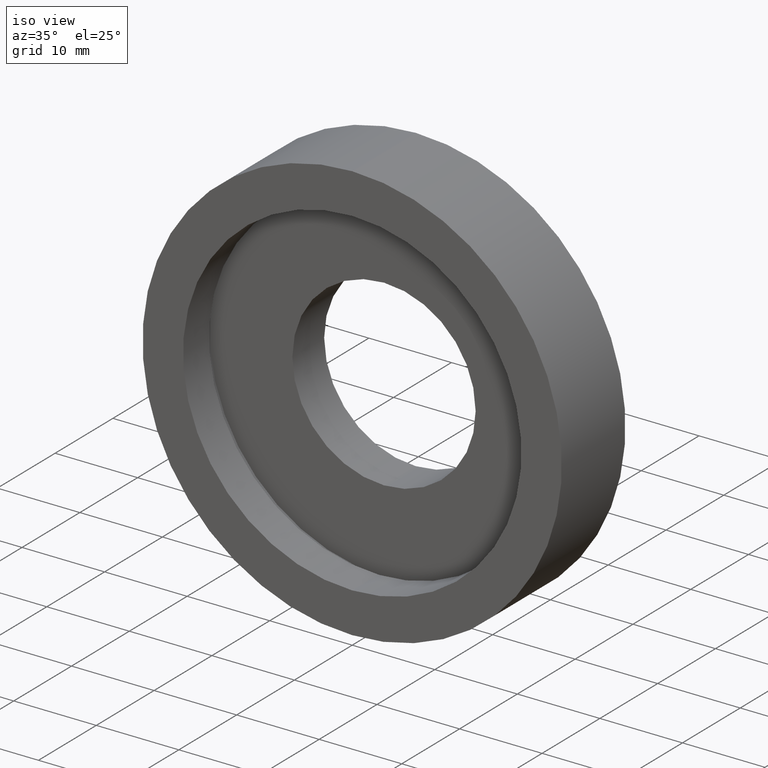
[diagram: clean part render]
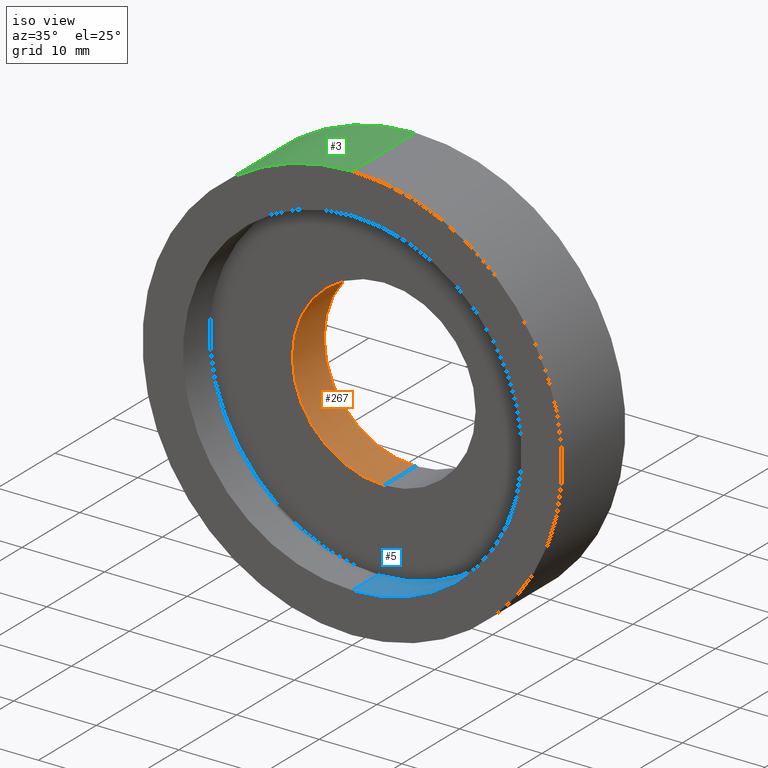
[diagram: same view with three faces highlighted in distinct colors, each labeled with its STEP entity id]
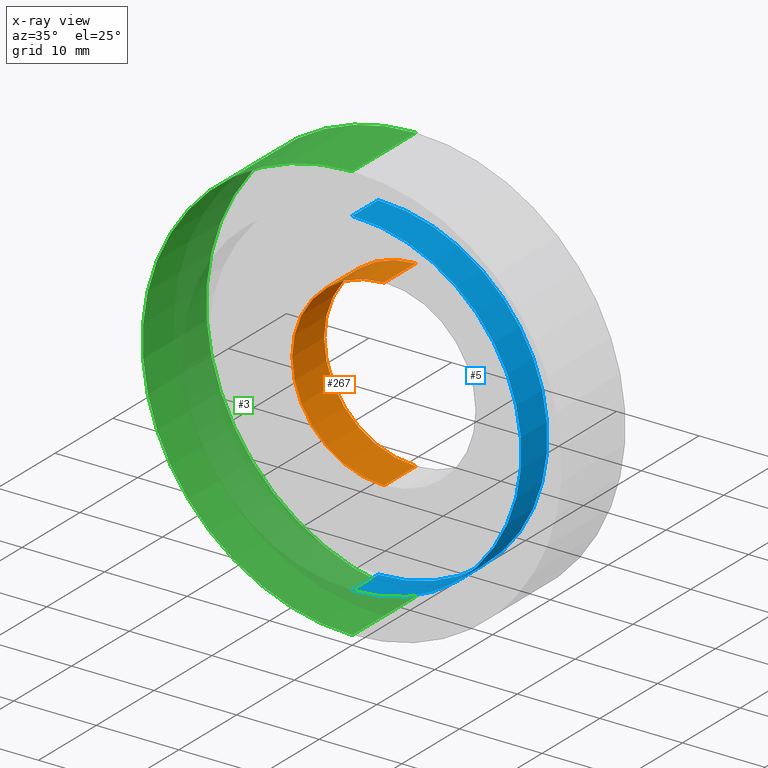
[diagram: x-ray of the same camera — body ghosted, the three highlighted faces saturated]
A machine part, iso view with three faces highlighted in distinct colors.
The next image is the same camera in x-ray (body ghosted, the three faces saturated) — at least one of them is partly hidden behind the body in this view.
Their STEP definitions:

[orange] entity #267 — the highlighted cylindrical surface (partial cylindrical patch) has radius 11.1 mm, axis along (-0, 1, -0).
#8 = CYLINDRICAL_SURFACE ( 'NONE', #61, 11.10000000000000500 ) ;
#9 = LINE ( 'NONE', #397, #364 ) ;
#18 = DIRECTION ( 'NONE',  ( 0.0000000000000000000, 0.0000000000000000000, 1.000000000000000000 ) ) ;
#19 = CIRCLE ( 'NONE', #52, 11.10000000000000700 ) ;
#21 = VERTEX_POINT ( 'NONE', #384 ) ;
#46 = ORIENTED_EDGE ( 'NONE', *, *, #66, .F. ) ;
#50 = CARTESIAN_POINT ( 'NONE',  ( 1.359357947053563100E-015, 10.99999999999999600, -11.10000000000000700 ) ) ;
#51 = CARTESIAN_POINT ( 'NONE',  ( 0.0000000000000000000, 10.99999999999999600, 0.0000000000000000000 ) ) ;
#52 = AXIS2_PLACEMENT_3D ( 'NONE', #51, #399, #18 ) ;
#58 = ORIENTED_EDGE ( 'NONE', *, *, #431, .F. ) ;
#61 = AXIS2_PLACEMENT_3D ( 'NONE', #317, #154, #351 ) ;
#65 = CARTESIAN_POINT ( 'NONE',  ( 0.0000000000000000000, 5.499999999999998200, 0.0000000000000000000 ) ) ;
#66 = EDGE_CURVE ( 'NONE', #192, #173, #9, .T. ) ;
#72 = EDGE_LOOP ( 'NONE', ( #58, #238, #156, #46 ) ) ;
#86 = VECTOR ( 'NONE', #242, 1000.000000000000000 ) ;
#91 = LINE ( 'NONE', #208, #86 ) ;
#95 = CARTESIAN_POINT ( 'NONE',  ( 0.0000000000000000000, 5.499999999999998200, 11.10000000000000500 ) ) ;
#115 = CARTESIAN_POINT ( 'NONE',  ( 0.0000000000000000000, 10.99999999999999600, 11.10000000000000700 ) ) ;
#154 = DIRECTION ( 'NONE',  ( -0.0000000000000000000, 1.000000000000000000, -0.0000000000000000000 ) ) ;
#156 = ORIENTED_EDGE ( 'NONE', *, *, #285, .T. ) ;
#173 = VERTEX_POINT ( 'NONE', #115 ) ;
#177 = AXIS2_PLACEMENT_3D ( 'NONE', #65, #237, #248 ) ;
#190 = CIRCLE ( 'NONE', #177, 11.10000000000000500 ) ;
#192 = VERTEX_POINT ( 'NONE', #95 ) ;
#208 = CARTESIAN_POINT ( 'NONE',  ( 1.359357947053562700E-015, 60.02082041425541100, -11.10000000000000500 ) ) ;
#232 = DIRECTION ( 'NONE',  ( -0.0000000000000000000, 1.000000000000000000, -0.0000000000000000000 ) ) ;
#237 = DIRECTION ( 'NONE',  ( -0.0000000000000000000, 1.000000000000000000, -0.0000000000000000000 ) ) ;
#238 = ORIENTED_EDGE ( 'NONE', *, *, #346, .T. ) ;
#242 = DIRECTION ( 'NONE',  ( -0.0000000000000000000, 1.000000000000000000, -0.0000000000000000000 ) ) ;
#248 = DIRECTION ( 'NONE',  ( 0.0000000000000000000, 0.0000000000000000000, 1.000000000000000000 ) ) ;
#267 = ADVANCED_FACE ( 'NONE', ( #294 ), #8, .F. ) ;
#285 = EDGE_CURVE ( 'NONE', #307, #173, #19, .T. ) ;
#294 = FACE_OUTER_BOUND ( 'NONE', #72, .T. ) ;
#307 = VERTEX_POINT ( 'NONE', #50 ) ;
#317 = CARTESIAN_POINT ( 'NONE',  ( 0.0000000000000000000, 60.02082041425541100, 0.0000000000000000000 ) ) ;
#346 = EDGE_CURVE ( 'NONE', #21, #307, #91, .T. ) ;
#351 = DIRECTION ( 'NONE',  ( 0.0000000000000000000, 0.0000000000000000000, 1.000000000000000000 ) ) ;
#364 = VECTOR ( 'NONE', #232, 1000.000000000000000 ) ;
#384 = CARTESIAN_POINT ( 'NONE',  ( 1.359357947053562700E-015, 5.499999999999998200, -11.10000000000000500 ) ) ;
#397 = CARTESIAN_POINT ( 'NONE',  ( 0.0000000000000000000, 60.02082041425541100, 11.10000000000000500 ) ) ;
#399 = DIRECTION ( 'NONE',  ( -0.0000000000000000000, 1.000000000000000000, -0.0000000000000000000 ) ) ;
#431 = EDGE_CURVE ( 'NONE', #21, #192, #190, .T. ) ;

[blue] entity #5 — the highlighted cylindrical surface (partial cylindrical patch) has radius 20.5 mm, axis along (-0, 1, -0).
#1 = DIRECTION ( 'NONE',  ( 0.0000000000000000000, 0.0000000000000000000, 1.000000000000000000 ) ) ;
#5 = ADVANCED_FACE ( 'NONE', ( #68 ), #136, .F. ) ;
#60 = DIRECTION ( 'NONE',  ( 0.0000000000000000000, 0.0000000000000000000, 1.000000000000000000 ) ) ;
#68 = FACE_OUTER_BOUND ( 'NONE', #386, .T. ) ;
#84 = AXIS2_PLACEMENT_3D ( 'NONE', #209, #362, #319 ) ;
#89 = ORIENTED_EDGE ( 'NONE', *, *, #390, .T. ) ;
#90 = DIRECTION ( 'NONE',  ( -0.0000000000000000000, 1.000000000000000000, -0.0000000000000000000 ) ) ;
#117 = AXIS2_PLACEMENT_3D ( 'NONE', #361, #163, #60 ) ;
#122 = VERTEX_POINT ( 'NONE', #406 ) ;
#129 = EDGE_CURVE ( 'NONE', #408, #244, #260, .T. ) ;
#136 = CYLINDRICAL_SURFACE ( 'NONE', #84, 20.50000000000000700 ) ;
#137 = LINE ( 'NONE', #401, #348 ) ;
#163 = DIRECTION ( 'NONE',  ( -0.0000000000000000000, 1.000000000000000000, -0.0000000000000000000 ) ) ;
#170 = ORIENTED_EDGE ( 'NONE', *, *, #240, .T. ) ;
#206 = LINE ( 'NONE', #279, #429 ) ;
#209 = CARTESIAN_POINT ( 'NONE',  ( 0.0000000000000000000, 60.02082041425541100, 0.0000000000000000000 ) ) ;
#219 = CIRCLE ( 'NONE', #117, 20.50000000000000700 ) ;
#240 = EDGE_CURVE ( 'NONE', #315, #122, #219, .T. ) ;
#244 = VERTEX_POINT ( 'NONE', #358 ) ;
#260 = CIRCLE ( 'NONE', #380, 20.50000000000000700 ) ;
#279 = CARTESIAN_POINT ( 'NONE',  ( 0.0000000000000000000, 60.02082041425541100, 20.50000000000000700 ) ) ;
#286 = DIRECTION ( 'NONE',  ( -0.0000000000000000000, 1.000000000000000000, -0.0000000000000000000 ) ) ;
#315 = VERTEX_POINT ( 'NONE', #368 ) ;
#319 = DIRECTION ( 'NONE',  ( 0.0000000000000000000, 0.0000000000000000000, 1.000000000000000000 ) ) ;
#343 = CARTESIAN_POINT ( 'NONE',  ( 0.0000000000000000000, 0.0000000000000000000, 0.0000000000000000000 ) ) ;
#348 = VECTOR ( 'NONE', #286, 1000.000000000000000 ) ;
#352 = ORIENTED_EDGE ( 'NONE', *, *, #129, .F. ) ;
#358 = CARTESIAN_POINT ( 'NONE',  ( 2.510525938252074900E-015, 0.0000000000000000000, -20.50000000000000700 ) ) ;
#361 = CARTESIAN_POINT ( 'NONE',  ( 0.0000000000000000000, 4.499999999999997300, 0.0000000000000000000 ) ) ;
#362 = DIRECTION ( 'NONE',  ( -0.0000000000000000000, 1.000000000000000000, -0.0000000000000000000 ) ) ;
#368 = CARTESIAN_POINT ( 'NONE',  ( 0.0000000000000000000, 4.499999999999997300, 20.50000000000000700 ) ) ;
#373 = DIRECTION ( 'NONE',  ( -0.0000000000000000000, 1.000000000000000000, -0.0000000000000000000 ) ) ;
#380 = AXIS2_PLACEMENT_3D ( 'NONE', #343, #373, #1 ) ;
#386 = EDGE_LOOP ( 'NONE', ( #395, #352, #89, #170 ) ) ;
#390 = EDGE_CURVE ( 'NONE', #408, #315, #206, .T. ) ;
#395 = ORIENTED_EDGE ( 'NONE', *, *, #410, .F. ) ;
#401 = CARTESIAN_POINT ( 'NONE',  ( 2.510525938252074900E-015, 60.02082041425541100, -20.50000000000000700 ) ) ;
#406 = CARTESIAN_POINT ( 'NONE',  ( 2.510525938252074900E-015, 4.499999999999997300, -20.50000000000000700 ) ) ;
#408 = VERTEX_POINT ( 'NONE', #422 ) ;
#410 = EDGE_CURVE ( 'NONE', #244, #122, #137, .T. ) ;
#422 = CARTESIAN_POINT ( 'NONE',  ( 0.0000000000000000000, 0.0000000000000000000, 20.50000000000000700 ) ) ;
#429 = VECTOR ( 'NONE', #90, 1000.000000000000000 ) ;

[green] entity #3 — the highlighted cylindrical surface (partial cylindrical patch) has radius 25.4 mm, axis along (-0, 1, -0).
#3 = ADVANCED_FACE ( 'NONE', ( #155 ), #338, .T. ) ;
#27 = VECTOR ( 'NONE', #204, 1000.000000000000000 ) ;
#28 = CARTESIAN_POINT ( 'NONE',  ( 3.110602869834277300E-015, 10.99999999999999600, -25.40000000000000200 ) ) ;
#29 = EDGE_CURVE ( 'NONE', #130, #34, #366, .T. ) ;
#34 = VERTEX_POINT ( 'NONE', #28 ) ;
#38 = AXIS2_PLACEMENT_3D ( 'NONE', #310, #309, #188 ) ;
#39 = EDGE_CURVE ( 'NONE', #433, #313, #342, .T. ) ;
#42 = AXIS2_PLACEMENT_3D ( 'NONE', #227, #264, #336 ) ;
#81 = CIRCLE ( 'NONE', #42, 25.40000000000000200 ) ;
#93 = CARTESIAN_POINT ( 'NONE',  ( 3.110602869834277300E-015, 60.02082041425541100, -25.40000000000000200 ) ) ;
#98 = ORIENTED_EDGE ( 'NONE', *, *, #370, .F. ) ;
#111 = CARTESIAN_POINT ( 'NONE',  ( 3.110602869834277300E-015, 0.0000000000000000000, -25.40000000000000200 ) ) ;
#128 = DIRECTION ( 'NONE',  ( -0.0000000000000000000, 1.000000000000000000, -0.0000000000000000000 ) ) ;
#130 = VERTEX_POINT ( 'NONE', #111 ) ;
#144 = CARTESIAN_POINT ( 'NONE',  ( 0.0000000000000000000, 0.0000000000000000000, 25.40000000000000200 ) ) ;
#155 = FACE_OUTER_BOUND ( 'NONE', #220, .T. ) ;
#171 = CARTESIAN_POINT ( 'NONE',  ( 0.0000000000000000000, 10.99999999999999600, 25.40000000000000200 ) ) ;
#172 = EDGE_CURVE ( 'NONE', #130, #433, #81, .T. ) ;
#181 = CIRCLE ( 'NONE', #38, 25.40000000000000200 ) ;
#183 = CARTESIAN_POINT ( 'NONE',  ( 0.0000000000000000000, 60.02082041425541100, 25.40000000000000200 ) ) ;
#188 = DIRECTION ( 'NONE',  ( 0.0000000000000000000, 0.0000000000000000000, 1.000000000000000000 ) ) ;
#204 = DIRECTION ( 'NONE',  ( -0.0000000000000000000, 1.000000000000000000, -0.0000000000000000000 ) ) ;
#220 = EDGE_LOOP ( 'NONE', ( #349, #325, #225, #98 ) ) ;
#225 = ORIENTED_EDGE ( 'NONE', *, *, #39, .T. ) ;
#227 = CARTESIAN_POINT ( 'NONE',  ( 0.0000000000000000000, 0.0000000000000000000, 0.0000000000000000000 ) ) ;
#257 = AXIS2_PLACEMENT_3D ( 'NONE', #367, #128, #417 ) ;
#264 = DIRECTION ( 'NONE',  ( -0.0000000000000000000, 1.000000000000000000, -0.0000000000000000000 ) ) ;
#309 = DIRECTION ( 'NONE',  ( -0.0000000000000000000, 1.000000000000000000, -0.0000000000000000000 ) ) ;
#310 = CARTESIAN_POINT ( 'NONE',  ( 0.0000000000000000000, 10.99999999999999600, 0.0000000000000000000 ) ) ;
#313 = VERTEX_POINT ( 'NONE', #171 ) ;
#325 = ORIENTED_EDGE ( 'NONE', *, *, #172, .T. ) ;
#334 = DIRECTION ( 'NONE',  ( -0.0000000000000000000, 1.000000000000000000, -0.0000000000000000000 ) ) ;
#336 = DIRECTION ( 'NONE',  ( 0.0000000000000000000, 0.0000000000000000000, 1.000000000000000000 ) ) ;
#338 = CYLINDRICAL_SURFACE ( 'NONE', #257, 25.40000000000000200 ) ;
#342 = LINE ( 'NONE', #183, #27 ) ;
#349 = ORIENTED_EDGE ( 'NONE', *, *, #29, .F. ) ;
#366 = LINE ( 'NONE', #93, #420 ) ;
#367 = CARTESIAN_POINT ( 'NONE',  ( 0.0000000000000000000, 60.02082041425541100, 0.0000000000000000000 ) ) ;
#370 = EDGE_CURVE ( 'NONE', #34, #313, #181, .T. ) ;
#417 = DIRECTION ( 'NONE',  ( 0.0000000000000000000, 0.0000000000000000000, 1.000000000000000000 ) ) ;
#420 = VECTOR ( 'NONE', #334, 1000.000000000000000 ) ;
#433 = VERTEX_POINT ( 'NONE', #144 ) ;